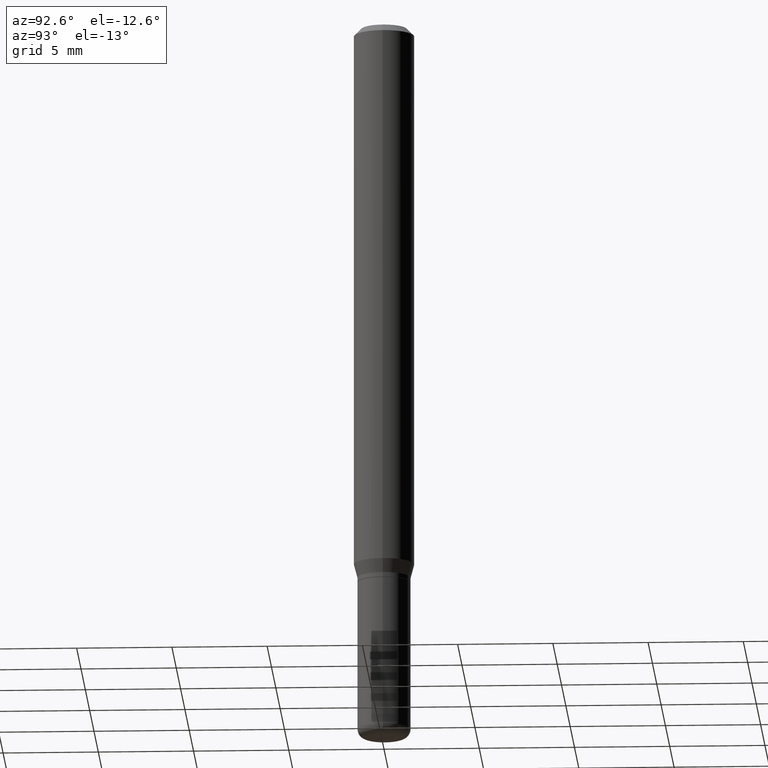
[diagram: clean part render]
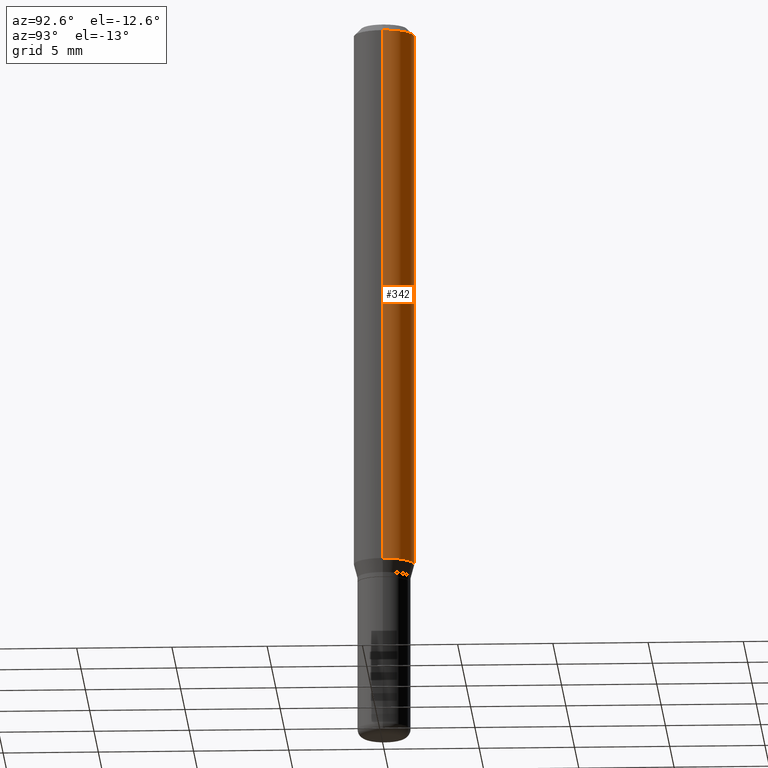
[diagram: same view with one face highlighted and labeled with its STEP entity id]
A machine part, auxiliary view. The second image highlights one B-rep face of the part: STEP entity #342.
In plain terms, the highlighted cylindrical surface (edge-blend (fillet) strip) has radius 1.5875 mm, axis along (-0, 0, 1).
Its self-contained STEP definition (entity closure, byte-faithful):
#13 = AXIS2_PLACEMENT_3D ( 'NONE', #448, #451, #172 ) ;
#19 = FACE_OUTER_BOUND ( 'NONE', #379, .T. ) ;
#67 = VERTEX_POINT ( 'NONE', #110 ) ;
#74 = EDGE_CURVE ( 'NONE', #509, #105, #402, .T. ) ;
#77 = AXIS2_PLACEMENT_3D ( 'NONE', #483, #126, #134 ) ;
#81 = DIRECTION ( 'NONE',  ( -2.445468806185136877E-29, 3.491481338843145188E-15, 1.000000000000000000 ) ) ;
#105 = VERTEX_POINT ( 'NONE', #441 ) ;
#110 = CARTESIAN_POINT ( 'NONE',  ( 0.06250000000000000000, -4.888073874380378612E-16, -0.01499999999999970281 ) ) ;
#126 = DIRECTION ( 'NONE',  ( -2.445468806185136597E-29, 3.491481338843145583E-15, 1.000000000000000000 ) ) ;
#134 = DIRECTION ( 'NONE',  ( 1.000000000000000000, -6.982962677686266711E-15, 4.876176775795935793E-29 ) ) ;
#144 = AXIS2_PLACEMENT_3D ( 'NONE', #469, #392, #300 ) ;
#169 = VERTEX_POINT ( 'NONE', #202 ) ;
#172 = DIRECTION ( 'NONE',  ( 1.000000000000000000, -6.982962677686266711E-15, 0.000000000000000000 ) ) ;
#183 = ORIENTED_EDGE ( 'NONE', *, *, #74, .T. ) ;
#202 = CARTESIAN_POINT ( 'NONE',  ( 0.06250000000000000000, -4.388825627286631627E-15, -1.132009618943233598 ) ) ;
#224 = ORIENTED_EDGE ( 'NONE', *, *, #395, .F. ) ;
#233 = DIRECTION ( 'NONE',  ( -2.445468806185136877E-29, 3.491481338843145188E-15, 1.000000000000000000 ) ) ;
#264 = EDGE_CURVE ( 'NONE', #67, #105, #406, .T. ) ;
#269 = VECTOR ( 'NONE', #81, 39.37007874015748143 ) ;
#275 = ORIENTED_EDGE ( 'NONE', *, *, #264, .F. ) ;
#278 = CARTESIAN_POINT ( 'NONE',  ( -0.06250000000000000000, 4.440892098500626162E-16, -3.074334431409316114E-30 ) ) ;
#291 = CYLINDRICAL_SURFACE ( 'NONE', #77, 0.06250000000000000000 ) ;
#300 = DIRECTION ( 'NONE',  ( 1.000000000000000000, -6.982962677686262766E-15, 0.000000000000000000 ) ) ;
#338 = VECTOR ( 'NONE', #233, 39.37007874015748143 ) ;
#342 = ADVANCED_FACE ( 'NONE', ( #19 ), #291, .T. ) ;
#379 = EDGE_LOOP ( 'NONE', ( #414, #183, #275, #224 ) ) ;
#380 = CARTESIAN_POINT ( 'NONE',  ( -0.06250000000000000000, -3.508301250081178130E-15, -1.132009618943233598 ) ) ;
#383 = CARTESIAN_POINT ( 'NONE',  ( 0.06250000000000000000, -4.364351673553916694E-16, 3.047610484872459871E-30 ) ) ;
#386 = LINE ( 'NONE', #383, #338 ) ;
#392 = DIRECTION ( 'NONE',  ( -2.445468806185136597E-29, 3.491481338843145583E-15, 1.000000000000000000 ) ) ;
#395 = EDGE_CURVE ( 'NONE', #169, #67, #386, .T. ) ;
#402 = LINE ( 'NONE', #278, #269 ) ;
#406 = CIRCLE ( 'NONE', #13, 0.06250000000000000000 ) ;
#414 = ORIENTED_EDGE ( 'NONE', *, *, #491, .T. ) ;
#441 = CARTESIAN_POINT ( 'NONE',  ( -0.06250000000000000000, -1.558292130156880508E-15, -0.01499999999999970281 ) ) ;
#448 = CARTESIAN_POINT ( 'NONE',  ( 3.668203209277632395E-31, -5.237222008264614861E-17, -0.01499999999999970281 ) ) ;
#451 = DIRECTION ( 'NONE',  ( -2.445468806185136597E-29, 3.491481338843145583E-15, 1.000000000000000000 ) ) ;
#469 = CARTESIAN_POINT ( 'NONE',  ( 2.768294211427201206E-29, -3.952390459931240746E-15, -1.132009618943233598 ) ) ;
#483 = CARTESIAN_POINT ( 'NONE',  ( 0.000000000000000000, 0.000000000000000000, 0.000000000000000000 ) ) ;
#487 = CIRCLE ( 'NONE', #144, 0.06250000000000000000 ) ;
#491 = EDGE_CURVE ( 'NONE', #169, #509, #487, .T. ) ;
#509 = VERTEX_POINT ( 'NONE', #380 ) ;